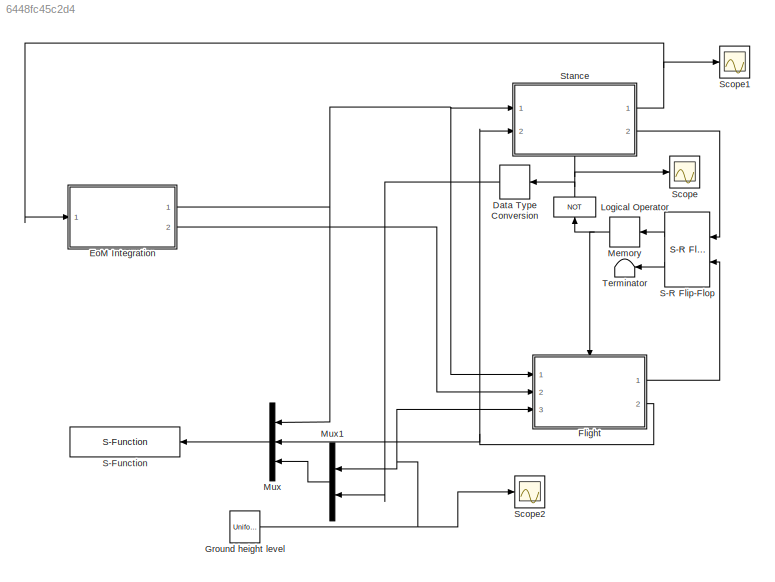
MODEL slx_6448fc45c2d4
KIND model
CONFIG AbsTol = auto
CONFIG EnableMultiTasking = off
CONFIG FixedStep = auto
CONFIG MaxStep = 1e-3
CONFIG MinStep = auto
CONFIG RelTol = 1e-3
CONFIG SampleTimeConstraint = Unconstrained
CONFIG Solver = VariableStepAuto
CONFIG SolverName = VariableStepAuto
CONFIG StartTime = 0.0
CONFIG StopTime = 10
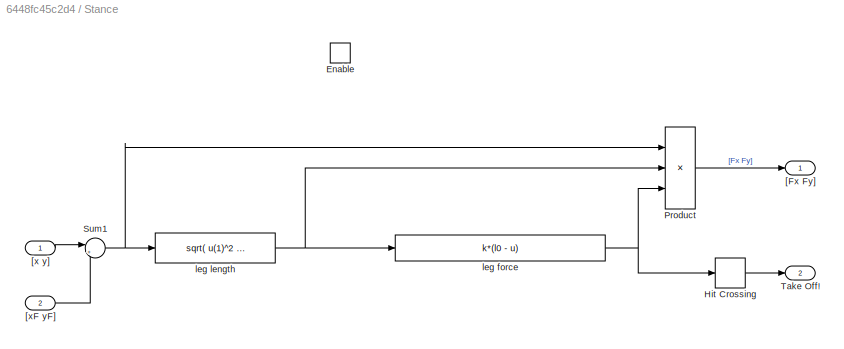
BLOCK [SubSystem]  Stance
  Ports = [2, 2, 1]
  RequestExecContextInheritance = off
BLOCK [EnablePort]  Stance/Enable
  Ports = []
BLOCK [HitCross]  Stance/Hit Crossing
  HitCrossingDirection = falling
  Ports = [1, 1]
BLOCK [Product]  Stance/Product
  InputSameDT = off
  Inputs = */*
  OutDataTypeStr = Inherit: Inherit via internal rule
  Ports = [3, 1]
  RndMeth = Floor
  SaturateOnIntegerOverflow = off
BLOCK [Sum]  Stance/Sum1
  IconShape = round
  InputSameDT = off
  Inputs = |+-
  OutDataTypeStr = Inherit: Inherit via internal rule
  Ports = [2, 1]
  SaturateOnIntegerOverflow = off
BLOCK [Outport]  Stance/Take Off!
  IconDisplay = Port number
  InitialOutput = 0
  OutputWhenDisabled = reset
  Port = 2
BLOCK [Outport]  Stance/[Fx Fy]
  IconDisplay = Port number
  InitialOutput = [0,0]
  OutputWhenDisabled = reset
BLOCK [Inport]  Stance/[x y]
  IconDisplay = Port number
BLOCK [Inport]  Stance/[xF yF]
  IconDisplay = Port number
  Port = 2
BLOCK [Fcn]  Stance/leg force
  Expr = k*(l0 - u)
BLOCK [Fcn]  Stance/leg length
  Expr = sqrt( u(1)^2 + u(2)^2 )
BLOCK [DataTypeConversion] Data Type Conversion
  OutDataTypeStr = double
  RndMeth = Floor
  SaturateOnIntegerOverflow = off
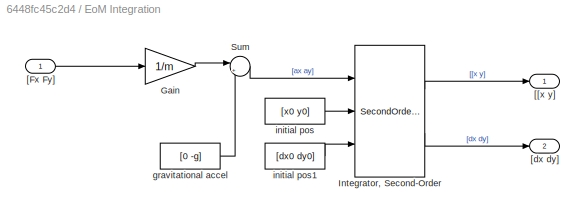
BLOCK [SubSystem] EoM Integration
  Ports = [1, 2]
  RequestExecContextInheritance = off
BLOCK [Gain] EoM Integration/Gain
  Gain = 1/m
  OutDataTypeStr = Inherit: Inherit via internal rule
  ParamDataTypeStr = Inherit: Inherit via internal rule
  SaturateOnIntegerOverflow = off
BLOCK [SecondOrderIntegrator] EoM Integration/Integrator, Second-Order
  ICSourceDXDT = external
  ICSourceX = external
  Ports = [3, 2]
BLOCK [Sum] EoM Integration/Sum
  IconShape = round
  InputSameDT = off
  Inputs = |++
  OutDataTypeStr = Inherit: Inherit via internal rule
  Ports = [2, 1]
  SaturateOnIntegerOverflow = off
BLOCK [Inport] EoM Integration/[Fx Fy]
  IconDisplay = Port number
BLOCK [Outport] EoM Integration/[[x y]
  IconDisplay = Port number
BLOCK [Outport] EoM Integration/[dx dy]
  IconDisplay = Port number
  Port = 2
BLOCK [Constant] EoM Integration/gravitational accel
  Value = [0 -g]
BLOCK [Constant] EoM Integration/initial pos
  Value = [x0 y0]
BLOCK [Constant] EoM Integration/initial pos1
  Value = [dx0 dy0]
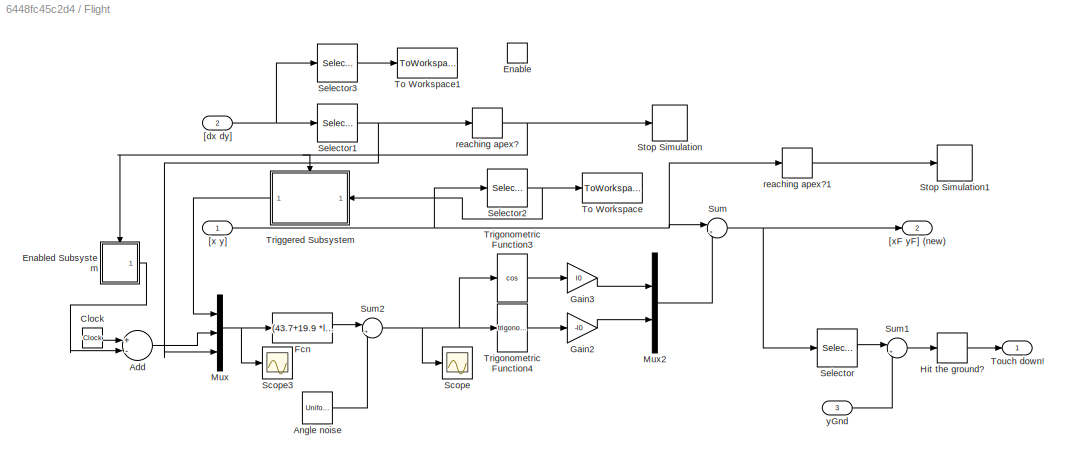
BLOCK [SubSystem] Flight
  Ports = [3, 2, 1]
  RequestExecContextInheritance = off
BLOCK [Sum] Flight/Add
  InputSameDT = off
  Inputs = +-
  OutDataTypeStr = Inherit: Inherit via internal rule
  Ports = [2, 1]
  SaturateOnIntegerOverflow = off
BLOCK [UniformRandomNumber] Flight/Angle noise
  Maximum = angle_noise
  Minimum = -angle_noise
  SampleTime = 0.3
BLOCK [Clock] Flight/Clock
BLOCK [EnablePort] Flight/Enable
  Ports = []
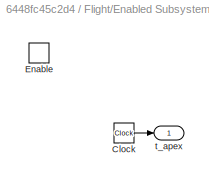
BLOCK [SubSystem] Flight/Enabled Subsystem
  Ports = [0, 1, 1]
  RequestExecContextInheritance = off
  TreatAsAtomicUnit = on
BLOCK [Clock] Flight/Enabled Subsystem/Clock
BLOCK [EnablePort] Flight/Enabled Subsystem/Enable
  Ports = []
BLOCK [Outport] Flight/Enabled Subsystem/t_apex
  IconDisplay = Port number
BLOCK [Fcn] Flight/Fcn
  Expr = (43.7+19.9 *l0 + 10.8*g*u(2)^2)*(pi/180)*(u(3)<0) + (63.6*pi/180)*(u(3)>=0)
BLOCK [Gain] Flight/Gain2
  Gain = -l0
  OutDataTypeStr = Inherit: Inherit via internal rule
  ParamDataTypeStr = Inherit: Inherit via internal rule
  SaturateOnIntegerOverflow = off
BLOCK [Gain] Flight/Gain3
  Gain = l0
  OutDataTypeStr = Inherit: Inherit via internal rule
  ParamDataTypeStr = Inherit: Inherit via internal rule
  SaturateOnIntegerOverflow = off
BLOCK [HitCross] Flight/Hit the ground?
  HitCrossingDirection = falling
  Ports = [1, 1]
BLOCK [Mux] Flight/Mux
  DisplayOption = bar
  Inputs = 3
  Ports = [3, 1]
BLOCK [Mux] Flight/Mux2
  DisplayOption = bar
  Inputs = 2
  Ports = [2, 1]
BLOCK [Scope] Flight/Scope
  Floating = off
  NumInputPorts = 1
  Ports = [1]
  ScopeSpecificationString = Simulink.scopes.TimeScopeBlockCfg('CurrentConfiguration', extmgr.ConfigurationSet(extmgr.Configuration('Core','General UI',true),extmgr.Configuration('Core','Source UI',true),extmgr.Configuration('Sources','WiredSimulink',true,'DataLoggingVariableName','ScopeData1'),extmgr.Configuration('Visuals','Time Domain',true,'SerializedDisplays',{struct('MinYLimReal','1.09548','MaxYLimReal','1.24096','YLabe...<+1390ch>
BLOCK [Scope] Flight/Scope3
  Floating = off
  NumInputPorts = 1
  Ports = [1]
  ScopeSpecificationString = Simulink.scopes.TimeScopeBlockCfg('CurrentConfiguration', extmgr.ConfigurationSet(extmgr.Configuration('Core','General UI',true),extmgr.Configuration('Core','Source UI',true),extmgr.Configuration('Sources','WiredSimulink',true,'DataLoggingVariableName','ScopeData4'),extmgr.Configuration('Visuals','Time Domain',true,'SerializedDisplays',{struct('MinYLimReal','-2.95231','MaxYLimReal','1.95982','YLab...<+1762ch>
BLOCK [Selector] Flight/Selector
  IndexOptions = Index vector (dialog)
  Indices = 2
  InputPortWidth = 2
  OutputSizes = 1
  Ports = [1, 1]
BLOCK [Selector] Flight/Selector1
  IndexOptions = Index vector (dialog)
  Indices = 2
  InputPortWidth = 2
  OutputSizes = 1
  Ports = [1, 1]
BLOCK [Selector] Flight/Selector2
  IndexOptions = Index vector (dialog)
  Indices = 1
  InputPortWidth = 2
  OutputSizes = 1
  Ports = [1, 1]
BLOCK [Selector] Flight/Selector3
  IndexOptions = Index vector (dialog)
  Indices = 1
  InputPortWidth = 2
  OutputSizes = 1
  Ports = [1, 1]
BLOCK [Stop] Flight/Stop Simulation
  Commented = on
BLOCK [Stop] Flight/Stop Simulation1
BLOCK [Sum] Flight/Sum
  IconShape = round
  InputSameDT = off
  Inputs = |++
  OutDataTypeStr = Inherit: Inherit via internal rule
  Ports = [2, 1]
  SaturateOnIntegerOverflow = off
BLOCK [Sum] Flight/Sum1
  IconShape = round
  InputSameDT = off
  Inputs = |+-
  OutDataTypeStr = Inherit: Inherit via internal rule
  Ports = [2, 1]
  SaturateOnIntegerOverflow = off
BLOCK [Sum] Flight/Sum2
  IconShape = round
  InputSameDT = off
  Inputs = |++
  OutDataTypeStr = Inherit: Inherit via internal rule
  Ports = [2, 1]
  SaturateOnIntegerOverflow = off
BLOCK [ToWorkspace] Flight/To Workspace
  FixptAsFi = on
  MaxDataPoints = 1
  Ports = [1]
  SampleTime = -1
  Save2DSignal = 3-D array (concatenate along third dimension)
  VariableName = distance
BLOCK [ToWorkspace] Flight/To Workspace1
  FixptAsFi = on
  MaxDataPoints = inf
  Ports = [1]
  SampleTime = -1
  Save2DSignal = 3-D array (concatenate along third dimension)
  VariableName = dx
BLOCK [Outport] Flight/Touch down!
  IconDisplay = Port number
  InitialOutput = 0
  OutputWhenDisabled = reset
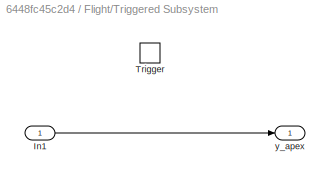
BLOCK [SubSystem] Flight/Triggered Subsystem
  Ports = [1, 1, 0, 1]
  RequestExecContextInheritance = off
  TreatAsAtomicUnit = on
BLOCK [Inport] Flight/Triggered Subsystem/In1
  IconDisplay = Port number
BLOCK [TriggerPort] Flight/Triggered Subsystem/Trigger
  Ports = []
  StatesWhenEnabling = held
  TriggerType = falling
  VariantControl = Variant
BLOCK [Outport] Flight/Triggered Subsystem/y_apex
  IconDisplay = Port number
BLOCK [Trigonometry] Flight/Trigonometric Function3
  Operator = cos
  Ports = [1, 1]
BLOCK [Trigonometry] Flight/Trigonometric Function4
  Ports = [1, 1]
BLOCK [Inport] Flight/[dx dy]
  IconDisplay = Port number
  Port = 2
BLOCK [Inport] Flight/[x y]
  IconDisplay = Port number
BLOCK [Outport] Flight/[xF yF] (new)
  IconDisplay = Port number
  Port = 2
BLOCK [HitCross] Flight/reaching apex?
  HitCrossingDirection = falling
  HitCrossingOffset = eps
  Ports = [1, 1]
BLOCK [HitCross] Flight/reaching apex?1
  HitCrossingDirection = falling
  Ports = [1, 1]
BLOCK [Inport] Flight/yGnd
  IconDisplay = Port number
  Port = 3
BLOCK [UniformRandomNumber] Ground height level
  Maximum = ground
  Minimum = -ground
  SampleTime = 0.3
BLOCK [Logic] Logical Operator
  AllPortsSameDT = off
  Operator = NOT
  OutDataTypeStr = boolean
  Ports = [1, 1]
BLOCK [Memory] Memory
  InitialCondition = 1
BLOCK [Mux] Mux
  DisplayOption = bar
  Inputs = 3
  Ports = [3, 1]
BLOCK [Mux] Mux1
  DisplayOption = bar
  Inputs = 2
  Ports = [2, 1]
BLOCK [S-Function] S-Function
  EnableBusSupport = off
  FunctionName = AnimSMR
  Parameters = 0.5
  Ports = [1]
  SFcnIsStateOwnerBlock = off
  SFunctionDeploymentMode = off
BLOCK [Reference] S-R Flip-Flop  REF=simulink_extras/Flip Flops/S-R
Flip-Flop
  Ports = [2, 2]
  SourceBlock = simulink_extras/Flip Flops/S-R\nFlip-Flop
  SourceProductBaseCode = SL
  SourceProductName = Simulink
  SourceType = SRFlipFlop
BLOCK [Scope] Scope
  Floating = off
  NumInputPorts = 1
  Ports = [1]
  ScopeSpecificationString = Simulink.scopes.TimeScopeBlockCfg('CurrentConfiguration', extmgr.ConfigurationSet(extmgr.Configuration('Core','General UI',true),extmgr.Configuration('Core','Source UI',true),extmgr.Configuration('Sources','WiredSimulink',true,'DataLoggingVariableName','ScopeData1'),extmgr.Configuration('Visuals','Time Domain',true,'SerializedDisplays',{struct('MinYLimReal','-0.125','MaxYLimReal','1.125','YLabelRe...<+1393ch>
BLOCK [Scope] Scope1
  Floating = off
  NumInputPorts = 1
  Ports = [1]
  ScopeSpecificationString = Simulink.scopes.TimeScopeBlockCfg('CurrentConfiguration', extmgr.ConfigurationSet(extmgr.Configuration('Core','General UI',true),extmgr.Configuration('Core','Source UI',true),extmgr.Configuration('Sources','WiredSimulink',true,'DataLoggingVariableName','ScopeData1'),extmgr.Configuration('Visuals','Time Domain',true,'SerializedDisplays',{struct('MinYLimReal','-1115.34307','MaxYLimReal','3974.48506'...<+1488ch>
BLOCK [Scope] Scope2
  Floating = off
  NumInputPorts = 1
  Ports = [1]
  ScopeSpecificationString = Simulink.scopes.TimeScopeBlockCfg('CurrentConfiguration', extmgr.ConfigurationSet(extmgr.Configuration('Core','General UI',true),extmgr.Configuration('Core','Source UI',true),extmgr.Configuration('Sources','WiredSimulink',true,'DataLoggingVariableName','ScopeData2'),extmgr.Configuration('Visuals','Time Domain',true),extmgr.Configuration('Tools','Plot Navigation',true),extmgr.Configuration('Tools',...<+40ch>
BLOCK [Terminator] Terminator
LINE  Stance/Hit Crossing:1 ->  Stance/Take Off!:1
LINE  Stance/Product:1 ->  Stance/[Fx Fy]:1
NET  Stance/Sum1:1 ->  Stance/Product:1,  Stance/leg length:1
LINE  Stance/[x y]:1 ->  Stance/Sum1:1
LINE  Stance/[xF yF]:1 ->  Stance/Sum1:2
NET  Stance/leg force:1 ->  Stance/Hit Crossing:1,  Stance/Product:3
NET  Stance/leg length:1 ->  Stance/Product:2,  Stance/leg force:1
NET  Stance:1 -> EoM Integration:1, Scope1:1
LINE  Stance:2 -> S-R Flip-Flop:1
LINE Data Type Conversion:1 -> Mux1:2
LINE EoM Integration/Gain:1 -> EoM Integration/Sum:1
LINE EoM Integration/Integrator, Second-Order:1 -> EoM Integration/[[x y]:1
LINE EoM Integration/Integrator, Second-Order:2 -> EoM Integration/[dx dy]:1
LINE EoM Integration/Sum:1 -> EoM Integration/Integrator, Second-Order:1
LINE EoM Integration/[Fx Fy]:1 -> EoM Integration/Gain:1
LINE EoM Integration/gravitational accel:1 -> EoM Integration/Sum:2
LINE EoM Integration/initial pos1:1 -> EoM Integration/Integrator, Second-Order:3
LINE EoM Integration/initial pos:1 -> EoM Integration/Integrator, Second-Order:2
NET EoM Integration:1 ->  Stance:1, Flight:1, Mux:1
LINE EoM Integration:2 -> Flight:2
LINE Flight/Add:1 -> Flight/Mux:2
LINE Flight/Angle noise:1 -> Flight/Sum2:2
LINE Flight/Clock:1 -> Flight/Add:1
LINE Flight/Enabled Subsystem/Clock:1 -> Flight/Enabled Subsystem/t_apex:1
LINE Flight/Enabled Subsystem:1 -> Flight/Add:2
LINE Flight/Fcn:1 -> Flight/Sum2:1
LINE Flight/Gain2:1 -> Flight/Mux2:2
LINE Flight/Gain3:1 -> Flight/Mux2:1
LINE Flight/Hit the ground?:1 -> Flight/Touch down!:1
LINE Flight/Mux2:1 -> Flight/Sum:2
NET Flight/Mux:1 -> Flight/Fcn:1, Flight/Scope3:1
NET Flight/Selector1:1 -> Flight/Mux:3, Flight/reaching apex?:1
NET Flight/Selector2:1 -> Flight/To Workspace:1, Flight/Triggered Subsystem:1
LINE Flight/Selector3:1 -> Flight/To Workspace1:1
LINE Flight/Selector:1 -> Flight/Sum1:1
LINE Flight/Sum1:1 -> Flight/Hit the ground?:1
NET Flight/Sum2:1 -> Flight/Scope:1, Flight/Trigonometric Function3:1, Flight/Trigonometric Function4:1
NET Flight/Sum:1 -> Flight/Selector:1, Flight/[xF yF] (new):1
LINE Flight/Triggered Subsystem/In1:1 -> Flight/Triggered Subsystem/y_apex:1
LINE Flight/Triggered Subsystem:1 -> Flight/Mux:1
LINE Flight/Trigonometric Function3:1 -> Flight/Gain3:1
LINE Flight/Trigonometric Function4:1 -> Flight/Gain2:1
NET Flight/[dx dy]:1 -> Flight/Selector1:1, Flight/Selector3:1
NET Flight/[x y]:1 -> Flight/Selector2:1, Flight/Sum:1, Flight/reaching apex?1:1
LINE Flight/reaching apex?1:1 -> Flight/Stop Simulation1:1
NET Flight/reaching apex?:1 -> Flight/Enabled Subsystem:enable, Flight/Stop Simulation:1, Flight/Triggered Subsystem:trigger
LINE Flight/yGnd:1 -> Flight/Sum1:2
LINE Flight:1 -> S-R Flip-Flop:2
NET Flight:2 ->  Stance:2, Mux:2
NET Ground height level:1 -> Flight:3, Mux1:1, Scope2:1
NET Logical Operator:1 ->  Stance:enable, Data Type Conversion:1, Scope:1
NET Memory:1 -> Flight:enable, Logical Operator:1
LINE Mux1:1 -> Mux:3
LINE Mux:1 -> S-Function:1
LINE S-R Flip-Flop:1 -> Memory:1
LINE S-R Flip-Flop:2 -> Terminator:1
note: NET lines group one-source signal fan-out (src -> all destinations, sorted); 1:1 wires keep LINE
